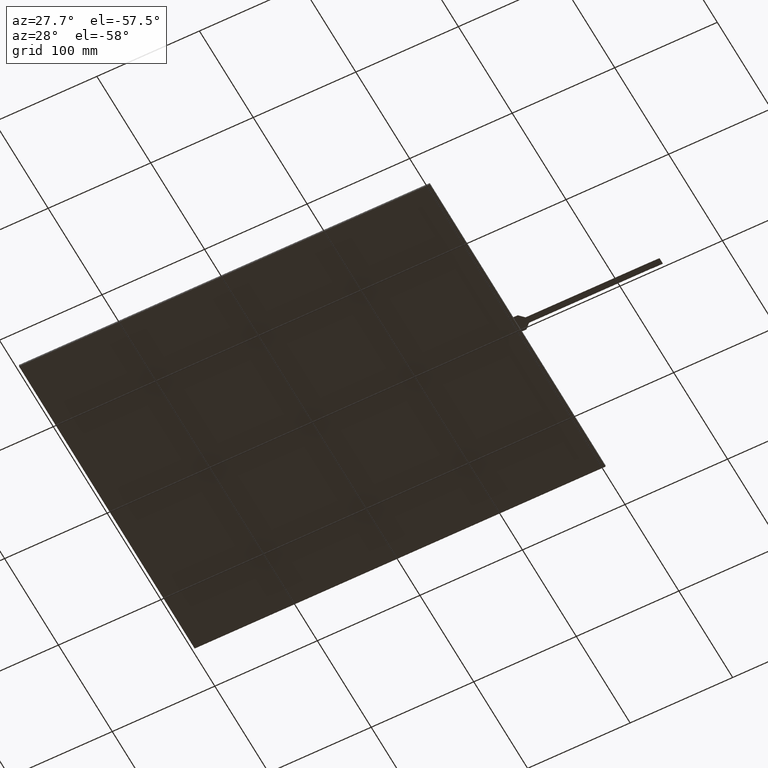
[diagram: clean part render]
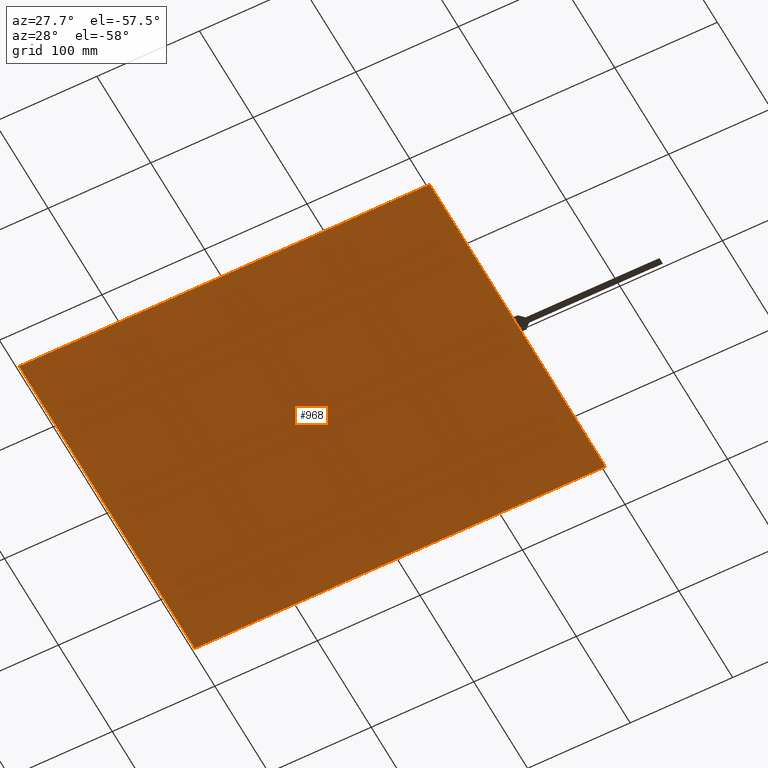
[diagram: same view with one face highlighted and labeled with its STEP entity id]
A machine part, auxiliary view. The second image highlights one B-rep face of the part: STEP entity #968.
In plain terms, the highlighted planar face has unit normal (0, 0, -1).
Its self-contained STEP definition (entity closure, byte-faithful):
#93=PLANE('',#1042);
#141=FACE_OUTER_BOUND('',#192,.T.);
#192=EDGE_LOOP('',(#914,#915,#916,#917));
#309=LINE('',#1526,#432);
#311=LINE('',#1530,#434);
#313=LINE('',#1534,#436);
#315=LINE('',#1537,#438);
#432=VECTOR('',#1259,10.);
#434=VECTOR('',#1263,10.);
#436=VECTOR('',#1267,10.);
#438=VECTOR('',#1271,10.);
#527=VERTEX_POINT('',#1523);
#528=VERTEX_POINT('',#1525);
#529=VERTEX_POINT('',#1529);
#530=VERTEX_POINT('',#1533);
#653=EDGE_CURVE('',#528,#527,#309,.T.);
#655=EDGE_CURVE('',#529,#528,#311,.T.);
#657=EDGE_CURVE('',#530,#529,#313,.T.);
#659=EDGE_CURVE('',#527,#530,#315,.T.);
#914=ORIENTED_EDGE('',*,*,#659,.T.);
#915=ORIENTED_EDGE('',*,*,#657,.T.);
#916=ORIENTED_EDGE('',*,*,#655,.T.);
#917=ORIENTED_EDGE('',*,*,#653,.T.);
#968=ADVANCED_FACE('',(#141),#93,.T.);
#1042=AXIS2_PLACEMENT_3D('',#1539,#1274,#1275);
#1259=DIRECTION('',(-2.17690789142188E-16,1.,0.));
#1263=DIRECTION('',(-1.,0.,0.));
#1267=DIRECTION('',(1.08845394571094E-16,-1.,0.));
#1271=DIRECTION('',(1.,0.,0.));
#1274=DIRECTION('center_axis',(0.,0.,-1.));
#1275=DIRECTION('ref_axis',(-1.,0.,0.));
#1523=CARTESIAN_POINT('',(-200.3,163.2,-2.1));
#1525=CARTESIAN_POINT('',(-200.3,-163.2,-2.1));
#1526=CARTESIAN_POINT('',(-200.3,163.2,-2.1));
#1529=CARTESIAN_POINT('',(200.3,-163.2,-2.1));
#1530=CARTESIAN_POINT('',(-200.3,-163.2,-2.1));
#1533=CARTESIAN_POINT('',(200.3,163.2,-2.1));
#1534=CARTESIAN_POINT('',(200.3,-163.2,-2.1));
#1537=CARTESIAN_POINT('',(200.3,163.2,-2.1));
#1539=CARTESIAN_POINT('Origin',(-3.5527136788005E-14,0.,-2.1));